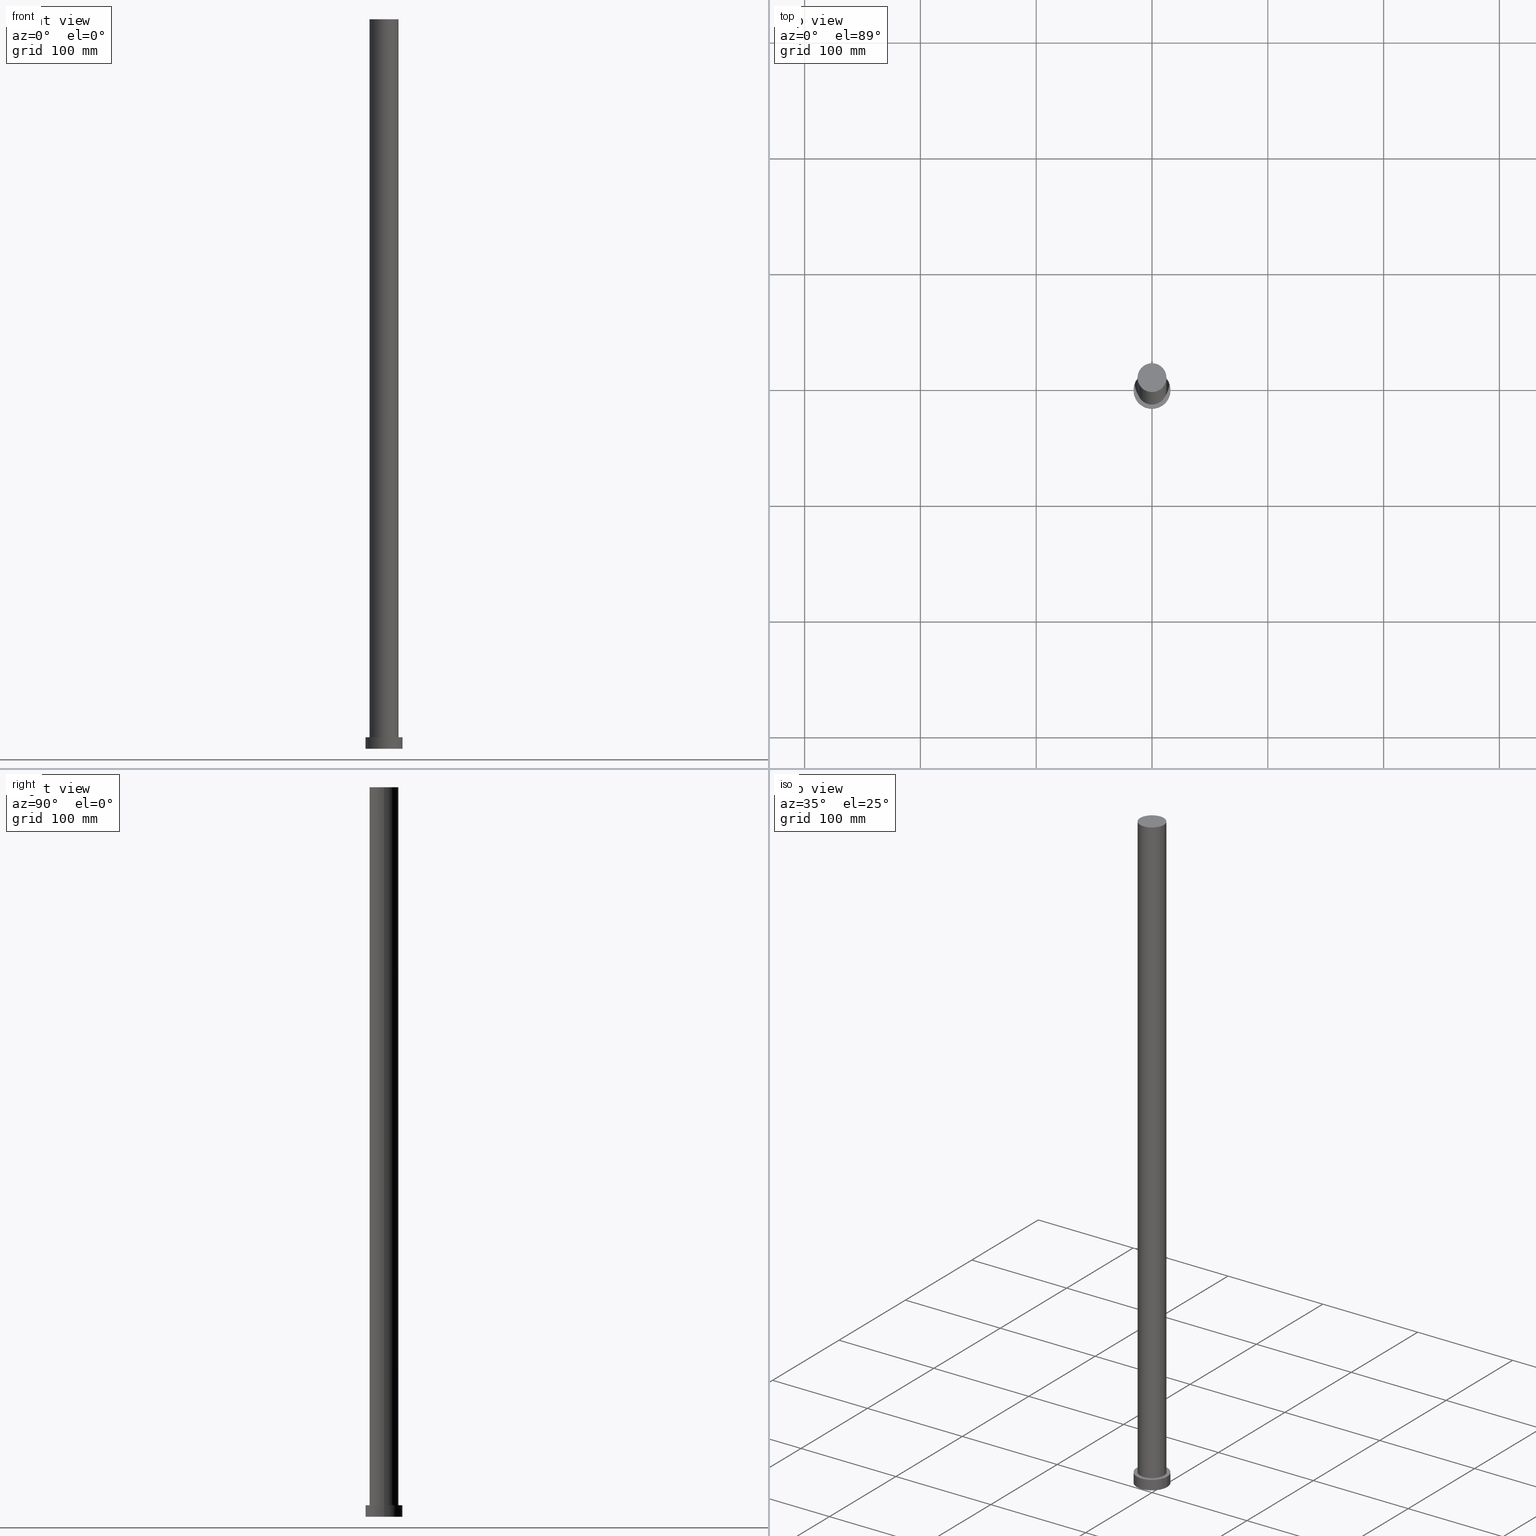
[diagram: canonical four-view strip — front | top / right | iso, engineering-drawing reading convention]
A machine part, canonical four-view strip (front | top / right | iso — engineering-drawing reading convention). The complete STEP part file that produces these views, byte-faithful:
ISO-10303-21;
HEADER;
FILE_DESCRIPTION (( 'STEP AP203' ),
    '1' );
FILE_NAME ('89f8.STEP',
    '2023-02-13T07:51:23',
    ( '' ),
    ( '' ),
    'SwSTEP 2.0',
    'SolidWorks 2019',
    '' );
FILE_SCHEMA (( 'CONFIG_CONTROL_DESIGN' ));
ENDSEC;

DATA;
#1 = FACE_OUTER_BOUND ( 'NONE', #225, .T. ) ;
#2 = PERSON_AND_ORGANIZATION_ROLE ( 'creator' ) ;
#3 = LOCAL_TIME ( 8, 51, 23.00000000000000000, #221 ) ;
#4 = CC_DESIGN_PERSON_AND_ORGANIZATION_ASSIGNMENT ( #142, #242, ( #140 ) ) ;
#5 = APPROVAL_STATUS ( 'not_yet_approved' ) ;
#6 = DATE_AND_TIME ( #181, #74 ) ;
#7 = ORIENTED_EDGE ( 'NONE', *, *, #110, .T. ) ;
#8 = DIRECTION ( 'NONE',  ( 1.000000000000000000, 0.000000000000000000, 0.000000000000000000 ) ) ;
#9 = EDGE_CURVE ( 'NONE', #71, #170, #45, .T. ) ;
#10 = DIRECTION ( 'NONE',  ( 0.000000000000000000, 0.000000000000000000, 1.000000000000000000 ) ) ;
#11 = UNCERTAINTY_MEASURE_WITH_UNIT (LENGTH_MEASURE( 1.000000000000000082E-05 ), #218, 'distance_accuracy_value', 'NONE');
#12 = CARTESIAN_POINT ( 'NONE',  ( 0.000000000000000000, 0.000000000000000000, 0.000000000000000000 ) ) ;
#13 = CYLINDRICAL_SURFACE ( 'NONE', #65, 12.50000000000000000 ) ;
#14 = SECURITY_CLASSIFICATION ( '', '', #184 ) ;
#15 = FACE_OUTER_BOUND ( 'NONE', #131, .T. ) ;
#16 = CARTESIAN_POINT ( 'NONE',  ( 12.50000000000000000, 1.530808498934191521E-15, 630.0000000000000000 ) ) ;
#17 = PLANE ( 'NONE',  #209 ) ;
#18 = DIRECTION ( 'NONE',  ( 0.000000000000000000, 0.000000000000000000, 1.000000000000000000 ) ) ;
#19 = VECTOR ( 'NONE', #168, 1000.000000000000000 ) ;
#20 = COORDINATED_UNIVERSAL_TIME_OFFSET ( 1, 0, .AHEAD. ) ;
#21 = PERSON_AND_ORGANIZATION ( #223, #100 ) ;
#22 = ADVANCED_FACE ( 'NONE', ( #150 ), #130, .T. ) ;
#23 = CIRCLE ( 'NONE', #147, 16.00000000000000000 ) ;
#24 = PERSON_AND_ORGANIZATION ( #223, #100 ) ;
#25 = ADVANCED_BREP_SHAPE_REPRESENTATION ( '89f8', ( #246, #95 ), #157 ) ;
#26 = APPROVAL ( #240, 'NEUR�EN�' ) ;
#27 = ORIENTED_EDGE ( 'NONE', *, *, #126, .F. ) ;
#28 = CARTESIAN_POINT ( 'NONE',  ( 0.000000000000000000, 0.000000000000000000, 630.0000000000000000 ) ) ;
#29 = EDGE_CURVE ( 'NONE', #172, #151, #175, .T. ) ;
#30 = PRODUCT_RELATED_PRODUCT_CATEGORY ( 'detail', '', ( #137 ) ) ;
#31 = ORIENTED_EDGE ( 'NONE', *, *, #57, .F. ) ;
#32 = ORIENTED_EDGE ( 'NONE', *, *, #222, .T. ) ;
#33 = DIRECTION ( 'NONE',  ( 1.000000000000000000, 0.000000000000000000, 0.000000000000000000 ) ) ;
#34 = EDGE_CURVE ( 'NONE', #112, #170, #50, .T. ) ;
#35 = CARTESIAN_POINT ( 'NONE',  ( 0.000000000000000000, 0.000000000000000000, 0.000000000000000000 ) ) ;
#36 = VECTOR ( 'NONE', #119, 1000.000000000000000 ) ;
#37 = CARTESIAN_POINT ( 'NONE',  ( -12.50000000000000000, 0.000000000000000000, 10.00000000000000000 ) ) ;
#38 = CARTESIAN_POINT ( 'NONE',  ( 0.000000000000000000, 0.000000000000000000, 10.00000000000000000 ) ) ;
#39 = DIRECTION ( 'NONE',  ( 0.000000000000000000, 0.000000000000000000, 1.000000000000000000 ) ) ;
#40 = LOCAL_TIME ( 8, 51, 23.00000000000000000, #104 ) ;
#41 = CARTESIAN_POINT ( 'NONE',  ( 16.00000000000000000, 1.959434878635765131E-15, 10.00000000000000000 ) ) ;
#42 = PERSON_AND_ORGANIZATION_ROLE ( 'classification_officer' ) ;
#43 = VECTOR ( 'NONE', #214, 1000.000000000000000 ) ;
#44 = DATE_AND_TIME ( #144, #3 ) ;
#45 = CIRCLE ( 'NONE', #146, 12.50000000000000000 ) ;
#46 = APPLICATION_CONTEXT ( 'configuration controlled 3d designs of mechanical parts and assemblies' ) ;
#47 = ORIENTED_EDGE ( 'NONE', *, *, #182, .T. ) ;
#48 = CC_DESIGN_PERSON_AND_ORGANIZATION_ASSIGNMENT ( #62, #220, ( #140 ) ) ;
#49 = ORIENTED_EDGE ( 'NONE', *, *, #97, .T. ) ;
#50 = LINE ( 'NONE', #191, #19 ) ;
#51 = VECTOR ( 'NONE', #160, 1000.000000000000000 ) ;
#52 = AXIS2_PLACEMENT_3D ( 'NONE', #154, #10, #33 ) ;
#53 = EDGE_LOOP ( 'NONE', ( #31, #32, #54, #244 ) ) ;
#54 = ORIENTED_EDGE ( 'NONE', *, *, #9, .T. ) ;
#55 = LINE ( 'NONE', #16, #43 ) ;
#56 = CARTESIAN_POINT ( 'NONE',  ( 0.000000000000000000, 0.000000000000000000, 0.000000000000000000 ) ) ;
#57 = EDGE_CURVE ( 'NONE', #91, #112, #164, .T. ) ;
#58 = CARTESIAN_POINT ( 'NONE',  ( 0.000000000000000000, 0.000000000000000000, 630.0000000000000000 ) ) ;
#59 = FACE_OUTER_BOUND ( 'NONE', #75, .T. ) ;
#60 = CC_DESIGN_APPROVAL ( #26, ( #140 ) ) ;
#61 = PLANE ( 'NONE',  #109 ) ;
#62 = PERSON_AND_ORGANIZATION ( #223, #100 ) ;
#63 = DATE_TIME_ROLE ( 'creation_date' ) ;
#64 = COORDINATED_UNIVERSAL_TIME_OFFSET ( 1, 0, .AHEAD. ) ;
#65 = AXIS2_PLACEMENT_3D ( 'NONE', #129, #245, #249 ) ;
#66 = DATE_AND_TIME ( #180, #162 ) ;
#67 = AXIS2_PLACEMENT_3D ( 'NONE', #28, #188, #113 ) ;
#68 = ADVANCED_FACE ( 'NONE', ( #230 ), #13, .T. ) ;
#69 = EDGE_LOOP ( 'NONE', ( #47, #229 ) ) ;
#70 = AXIS2_PLACEMENT_3D ( 'NONE', #174, #217, #121 ) ;
#71 = VERTEX_POINT ( 'NONE', #92 ) ;
#72 = ORIENTED_EDGE ( 'NONE', *, *, #153, .F. ) ;
#73 = EDGE_LOOP ( 'NONE', ( #128, #148, #207, #211 ) ) ;
#74 = LOCAL_TIME ( 8, 51, 23.00000000000000000, #64 ) ;
#75 = EDGE_LOOP ( 'NONE', ( #7, #171 ) ) ;
#76 = DIRECTION ( 'NONE',  ( 0.000000000000000000, 0.000000000000000000, 1.000000000000000000 ) ) ;
#77 = FACE_OUTER_BOUND ( 'NONE', #69, .T. ) ;
#78 = ADVANCED_FACE ( 'NONE', ( #15 ), #80, .F. ) ;
#79 = APPROVAL ( #5, 'NEUR�EN�' ) ;
#80 = PLANE ( 'NONE',  #152 ) ;
#81 = LINE ( 'NONE', #251, #51 ) ;
#82 = DIRECTION ( 'NONE',  ( 1.000000000000000000, 0.000000000000000000, 0.000000000000000000 ) ) ;
#83 = PERSON_AND_ORGANIZATION ( #223, #100 ) ;
#84 = EDGE_CURVE ( 'NONE', #89, #151, #193, .T. ) ;
#85 = APPLICATION_CONTEXT ( 'configuration controlled 3d designs of mechanical parts and assemblies' ) ;
#86 = SHAPE_DEFINITION_REPRESENTATION ( #105, #25 ) ;
#87 = COORDINATED_UNIVERSAL_TIME_OFFSET ( 1, 0, .AHEAD. ) ;
#88 = ORIENTED_EDGE ( 'NONE', *, *, #110, .F. ) ;
#89 = VERTEX_POINT ( 'NONE', #41 ) ;
#90 = CIRCLE ( 'NONE', #163, 16.00000000000000000 ) ;
#91 = VERTEX_POINT ( 'NONE', #235 ) ;
#92 = CARTESIAN_POINT ( 'NONE',  ( 12.50000000000000000, 1.530808498934191521E-15, 10.00000000000000000 ) ) ;
#93 = CC_DESIGN_PERSON_AND_ORGANIZATION_ASSIGNMENT ( #21, #2, ( #192 ) ) ;
#94 = ORIENTED_EDGE ( 'NONE', *, *, #222, .F. ) ;
#95 = AXIS2_PLACEMENT_3D ( 'NONE', #196, #139, #124 ) ;
#96 = DIRECTION ( 'NONE',  ( 1.000000000000000000, 0.000000000000000000, -0.000000000000000000 ) ) ;
#97 = EDGE_CURVE ( 'NONE', #151, #172, #23, .T. ) ;
#98 = DIRECTION ( 'NONE',  ( 1.000000000000000000, 0.000000000000000000, 0.000000000000000000 ) ) ;
#99 = CARTESIAN_POINT ( 'NONE',  ( -16.00000000000000000, 0.000000000000000000, 10.00000000000000000 ) ) ;
#100 = ORGANIZATION ( 'NEUR�EN�', 'NEUR�EN�', '' ) ;
#101 = AXIS2_PLACEMENT_3D ( 'NONE', #12, #187, #8 ) ;
#102 = CALENDAR_DATE ( 2023, 13, 2 ) ;
#103 = DIRECTION ( 'NONE',  ( 1.000000000000000000, 0.000000000000000000, 0.000000000000000000 ) ) ;
#104 = COORDINATED_UNIVERSAL_TIME_OFFSET ( 1, 0, .AHEAD. ) ;
#105 = PRODUCT_DEFINITION_SHAPE ( 'NONE', 'NONE',  #192 ) ;
#106 = EDGE_CURVE ( 'NONE', #170, #71, #179, .T. ) ;
#107 = APPROVAL_ROLE ( '' ) ;
#108 = APPROVAL_DATE_TIME ( #44, #79 ) ;
#109 = AXIS2_PLACEMENT_3D ( 'NONE', #177, #76, #96 ) ;
#110 = EDGE_CURVE ( 'NONE', #112, #91, #228, .T. ) ;
#111 = CC_DESIGN_PERSON_AND_ORGANIZATION_ASSIGNMENT ( #83, #42, ( #14 ) ) ;
#112 = VERTEX_POINT ( 'NONE', #238 ) ;
#113 = DIRECTION ( 'NONE',  ( -1.000000000000000000, 0.000000000000000000, 0.000000000000000000 ) ) ;
#114 = ORIENTED_EDGE ( 'NONE', *, *, #84, .T. ) ;
#115 = ORIENTED_EDGE ( 'NONE', *, *, #34, .T. ) ;
#116 = ORIENTED_EDGE ( 'NONE', *, *, #106, .T. ) ;
#117 = FACE_BOUND ( 'NONE', #208, .T. ) ;
#118 = FACE_OUTER_BOUND ( 'NONE', #73, .T. ) ;
#119 = DIRECTION ( 'NONE',  ( -0.000000000000000000, -0.000000000000000000, -1.000000000000000000 ) ) ;
#120 = PERSON_AND_ORGANIZATION_ROLE ( 'design_owner' ) ;
#121 = DIRECTION ( 'NONE',  ( -1.000000000000000000, 0.000000000000000000, 0.000000000000000000 ) ) ;
#122 = APPLICATION_PROTOCOL_DEFINITION ( 'international standard', 'config_control_design', 1994, #46 ) ;
#123 = CC_DESIGN_DATE_AND_TIME_ASSIGNMENT ( #176, #63, ( #192 ) ) ;
#124 = DIRECTION ( 'NONE',  ( 1.000000000000000000, 0.000000000000000000, 0.000000000000000000 ) ) ;
#125 = DATE_TIME_ROLE ( 'classification_date' ) ;
#126 = EDGE_CURVE ( 'NONE', #224, #172, #81, .T. ) ;
#127 = ORIENTED_EDGE ( 'NONE', *, *, #9, .F. ) ;
#128 = ORIENTED_EDGE ( 'NONE', *, *, #84, .F. ) ;
#129 = CARTESIAN_POINT ( 'NONE',  ( 0.000000000000000000, 0.000000000000000000, 630.0000000000000000 ) ) ;
#130 = CYLINDRICAL_SURFACE ( 'NONE', #67, 12.50000000000000000 ) ;
#131 = EDGE_LOOP ( 'NONE', ( #243, #226 ) ) ;
#132 = DIRECTION ( 'NONE',  ( 1.000000000000000000, 0.000000000000000000, -0.000000000000000000 ) ) ;
#133 = DIRECTION ( 'NONE',  ( 1.000000000000000000, 0.000000000000000000, -0.000000000000000000 ) ) ;
#134 = CARTESIAN_POINT ( 'NONE',  ( -16.00000000000000000, 0.000000000000000000, 0.000000000000000000 ) ) ;
#135 = DATE_AND_TIME ( #199, #40 ) ;
#136 = APPROVAL ( #237, 'NEUR�EN�' ) ;
#137 = PRODUCT ( '89f8', '89f8', '', ( #234 ) ) ;
#138 = CARTESIAN_POINT ( 'NONE',  ( 16.00000000000000000, 1.959434878635765131E-15, 0.000000000000000000 ) ) ;
#139 = DIRECTION ( 'NONE',  ( 0.000000000000000000, 0.000000000000000000, 1.000000000000000000 ) ) ;
#140 = PRODUCT_DEFINITION_FORMATION_WITH_SPECIFIED_SOURCE ( 'LIBOVOLN�', '', #137, .NOT_KNOWN. ) ;
#141 =( NAMED_UNIT ( * ) PLANE_ANGLE_UNIT ( ) SI_UNIT ( $, .RADIAN. ) );
#142 = PERSON_AND_ORGANIZATION ( #223, #100 ) ;
#143 = ADVANCED_FACE ( 'NONE', ( #59 ), #17, .T. ) ;
#144 = CALENDAR_DATE ( 2023, 13, 2 ) ;
#145 = CC_DESIGN_APPROVAL ( #136, ( #192 ) ) ;
#146 = AXIS2_PLACEMENT_3D ( 'NONE', #190, #210, #185 ) ;
#147 = AXIS2_PLACEMENT_3D ( 'NONE', #56, #253, #98 ) ;
#148 = ORIENTED_EDGE ( 'NONE', *, *, #182, .F. ) ;
#149 = EDGE_LOOP ( 'NONE', ( #94, #88, #115, #116 ) ) ;
#150 = FACE_OUTER_BOUND ( 'NONE', #53, .T. ) ;
#151 = VERTEX_POINT ( 'NONE', #138 ) ;
#152 = AXIS2_PLACEMENT_3D ( 'NONE', #35, #158, #132 ) ;
#153 = EDGE_CURVE ( 'NONE', #89, #224, #204, .T. ) ;
#154 = CARTESIAN_POINT ( 'NONE',  ( 0.000000000000000000, 0.000000000000000000, 630.0000000000000000 ) ) ;
#155 = CARTESIAN_POINT ( 'NONE',  ( 0.000000000000000000, 0.000000000000000000, 10.00000000000000000 ) ) ;
#156 = DIRECTION ( 'NONE',  ( 1.000000000000000000, 0.000000000000000000, 0.000000000000000000 ) ) ;
#157 =( GEOMETRIC_REPRESENTATION_CONTEXT ( 3 ) GLOBAL_UNCERTAINTY_ASSIGNED_CONTEXT ( ( #11 ) ) GLOBAL_UNIT_ASSIGNED_CONTEXT ( ( #218, #141, #202 ) ) REPRESENTATION_CONTEXT ( 'NONE', 'WORKASPACE' ) );
#158 = DIRECTION ( 'NONE',  ( 0.000000000000000000, 0.000000000000000000, 1.000000000000000000 ) ) ;
#159 = PERSON_AND_ORGANIZATION ( #223, #100 ) ;
#160 = DIRECTION ( 'NONE',  ( -0.000000000000000000, -0.000000000000000000, -1.000000000000000000 ) ) ;
#161 = DIRECTION ( 'NONE',  ( -1.000000000000000000, 0.000000000000000000, 0.000000000000000000 ) ) ;
#162 = LOCAL_TIME ( 8, 51, 23.00000000000000000, #87 ) ;
#163 = AXIS2_PLACEMENT_3D ( 'NONE', #38, #212, #156 ) ;
#164 = CIRCLE ( 'NONE', #52, 12.50000000000000000 ) ;
#165 = ORIENTED_EDGE ( 'NONE', *, *, #106, .F. ) ;
#166 = AXIS2_PLACEMENT_3D ( 'NONE', #254, #39, #103 ) ;
#167 = ADVANCED_FACE ( 'NONE', ( #117, #77 ), #61, .T. ) ;
#168 = DIRECTION ( 'NONE',  ( -0.000000000000000000, -0.000000000000000000, -1.000000000000000000 ) ) ;
#169 = CC_DESIGN_DATE_AND_TIME_ASSIGNMENT ( #66, #125, ( #14 ) ) ;
#170 = VERTEX_POINT ( 'NONE', #37 ) ;
#171 = ORIENTED_EDGE ( 'NONE', *, *, #57, .T. ) ;
#172 = VERTEX_POINT ( 'NONE', #134 ) ;
#173 = CYLINDRICAL_SURFACE ( 'NONE', #70, 16.00000000000000000 ) ;
#174 = CARTESIAN_POINT ( 'NONE',  ( 0.000000000000000000, 0.000000000000000000, 10.00000000000000000 ) ) ;
#175 = CIRCLE ( 'NONE', #101, 16.00000000000000000 ) ;
#176 = DATE_AND_TIME ( #102, #200 ) ;
#177 = CARTESIAN_POINT ( 'NONE',  ( 0.000000000000000000, 0.000000000000000000, 10.00000000000000000 ) ) ;
#178 = APPROVAL_DATE_TIME ( #135, #136 ) ;
#179 = CIRCLE ( 'NONE', #166, 12.50000000000000000 ) ;
#180 = CALENDAR_DATE ( 2023, 13, 2 ) ;
#181 = CALENDAR_DATE ( 2023, 13, 2 ) ;
#182 = EDGE_CURVE ( 'NONE', #224, #89, #90, .T. ) ;
#183 = APPROVAL_PERSON_ORGANIZATION ( #255, #26, #206 ) ;
#184 = SECURITY_CLASSIFICATION_LEVEL ( 'unclassified' ) ;
#185 = DIRECTION ( 'NONE',  ( 1.000000000000000000, 0.000000000000000000, 0.000000000000000000 ) ) ;
#186 = ADVANCED_FACE ( 'NONE', ( #1 ), #197, .T. ) ;
#187 = DIRECTION ( 'NONE',  ( 0.000000000000000000, 0.000000000000000000, 1.000000000000000000 ) ) ;
#188 = DIRECTION ( 'NONE',  ( -0.000000000000000000, -0.000000000000000000, -1.000000000000000000 ) ) ;
#189 = CC_DESIGN_APPROVAL ( #79, ( #14 ) ) ;
#190 = CARTESIAN_POINT ( 'NONE',  ( 0.000000000000000000, 0.000000000000000000, 10.00000000000000000 ) ) ;
#191 = CARTESIAN_POINT ( 'NONE',  ( -12.50000000000000000, 0.000000000000000000, 630.0000000000000000 ) ) ;
#192 = PRODUCT_DEFINITION ( 'NEZN�M�', '', #140, #247 ) ;
#193 = LINE ( 'NONE', #231, #36 ) ;
#194 = APPROVAL_PERSON_ORGANIZATION ( #24, #79, #107 ) ;
#195 = DIRECTION ( 'NONE',  ( -0.000000000000000000, -0.000000000000000000, -1.000000000000000000 ) ) ;
#196 = CARTESIAN_POINT ( 'NONE',  ( 0.000000000000000000, 0.000000000000000000, 0.000000000000000000 ) ) ;
#197 = CYLINDRICAL_SURFACE ( 'NONE', #213, 16.00000000000000000 ) ;
#198 = APPLICATION_PROTOCOL_DEFINITION ( 'international standard', 'config_control_design', 1994, #85 ) ;
#199 = CALENDAR_DATE ( 2023, 13, 2 ) ;
#200 = LOCAL_TIME ( 8, 51, 23.00000000000000000, #20 ) ;
#201 = DIRECTION ( 'NONE',  ( 0.000000000000000000, 0.000000000000000000, 1.000000000000000000 ) ) ;
#202 =( NAMED_UNIT ( * ) SI_UNIT ( $, .STERADIAN. ) SOLID_ANGLE_UNIT ( ) );
#203 = APPROVAL_ROLE ( '' ) ;
#204 = CIRCLE ( 'NONE', #248, 16.00000000000000000 ) ;
#205 = APPROVAL_DATE_TIME ( #6, #26 ) ;
#206 = APPROVAL_ROLE ( '' ) ;
#207 = ORIENTED_EDGE ( 'NONE', *, *, #126, .T. ) ;
#208 = EDGE_LOOP ( 'NONE', ( #165, #127 ) ) ;
#209 = AXIS2_PLACEMENT_3D ( 'NONE', #58, #18, #133 ) ;
#210 = DIRECTION ( 'NONE',  ( 0.000000000000000000, 0.000000000000000000, 1.000000000000000000 ) ) ;
#211 = ORIENTED_EDGE ( 'NONE', *, *, #29, .T. ) ;
#212 = DIRECTION ( 'NONE',  ( 0.000000000000000000, 0.000000000000000000, 1.000000000000000000 ) ) ;
#213 = AXIS2_PLACEMENT_3D ( 'NONE', #155, #195, #161 ) ;
#214 = DIRECTION ( 'NONE',  ( -0.000000000000000000, -0.000000000000000000, -1.000000000000000000 ) ) ;
#215 = DIRECTION ( 'NONE',  ( 0.000000000000000000, 0.000000000000000000, 1.000000000000000000 ) ) ;
#216 = PERSON_AND_ORGANIZATION ( #223, #100 ) ;
#217 = DIRECTION ( 'NONE',  ( -0.000000000000000000, -0.000000000000000000, -1.000000000000000000 ) ) ;
#218 =( LENGTH_UNIT ( ) NAMED_UNIT ( * ) SI_UNIT ( .MILLI., .METRE. ) );
#219 = AXIS2_PLACEMENT_3D ( 'NONE', #232, #201, #250 ) ;
#220 = PERSON_AND_ORGANIZATION_ROLE ( 'creator' ) ;
#221 = COORDINATED_UNIVERSAL_TIME_OFFSET ( 1, 0, .AHEAD. ) ;
#222 = EDGE_CURVE ( 'NONE', #91, #71, #55, .T. ) ;
#223 = PERSON ( 'NEUR�EN�', 'NEUR�EN�', 'NEUR�EN�', ('NEUR�EN�'), ('NEUR�EN�'), ('NEUR�EN�') ) ;
#224 = VERTEX_POINT ( 'NONE', #99 ) ;
#225 = EDGE_LOOP ( 'NONE', ( #72, #114, #49, #27 ) ) ;
#226 = ORIENTED_EDGE ( 'NONE', *, *, #97, .F. ) ;
#227 = ADVANCED_FACE ( 'NONE', ( #118 ), #173, .T. ) ;
#228 = CIRCLE ( 'NONE', #219, 12.50000000000000000 ) ;
#229 = ORIENTED_EDGE ( 'NONE', *, *, #153, .T. ) ;
#230 = FACE_OUTER_BOUND ( 'NONE', #149, .T. ) ;
#231 = CARTESIAN_POINT ( 'NONE',  ( 16.00000000000000000, 1.959434878635765131E-15, 10.00000000000000000 ) ) ;
#232 = CARTESIAN_POINT ( 'NONE',  ( 0.000000000000000000, 0.000000000000000000, 630.0000000000000000 ) ) ;
#233 = CLOSED_SHELL ( 'NONE', ( #22, #186, #227, #167, #78, #68, #143 ) ) ;
#234 = MECHANICAL_CONTEXT ( 'NONE', #46, 'mechanical' ) ;
#235 = CARTESIAN_POINT ( 'NONE',  ( 12.50000000000000000, 1.530808498934191521E-15, 630.0000000000000000 ) ) ;
#236 = CC_DESIGN_SECURITY_CLASSIFICATION ( #14, ( #140 ) ) ;
#237 = APPROVAL_STATUS ( 'not_yet_approved' ) ;
#238 = CARTESIAN_POINT ( 'NONE',  ( -12.50000000000000000, 0.000000000000000000, 630.0000000000000000 ) ) ;
#239 = CARTESIAN_POINT ( 'NONE',  ( 0.000000000000000000, 0.000000000000000000, 10.00000000000000000 ) ) ;
#240 = APPROVAL_STATUS ( 'not_yet_approved' ) ;
#241 = CC_DESIGN_PERSON_AND_ORGANIZATION_ASSIGNMENT ( #216, #120, ( #137 ) ) ;
#242 = PERSON_AND_ORGANIZATION_ROLE ( 'design_supplier' ) ;
#243 = ORIENTED_EDGE ( 'NONE', *, *, #29, .F. ) ;
#244 = ORIENTED_EDGE ( 'NONE', *, *, #34, .F. ) ;
#245 = DIRECTION ( 'NONE',  ( -0.000000000000000000, -0.000000000000000000, -1.000000000000000000 ) ) ;
#246 = MANIFOLD_SOLID_BREP ( 'P�idat vysunut�m3', #233 ) ;
#247 = DESIGN_CONTEXT ( 'detailed design', #85, 'design' ) ;
#248 = AXIS2_PLACEMENT_3D ( 'NONE', #239, #215, #82 ) ;
#249 = DIRECTION ( 'NONE',  ( -1.000000000000000000, 0.000000000000000000, 0.000000000000000000 ) ) ;
#250 = DIRECTION ( 'NONE',  ( 1.000000000000000000, 0.000000000000000000, 0.000000000000000000 ) ) ;
#251 = CARTESIAN_POINT ( 'NONE',  ( -16.00000000000000000, 0.000000000000000000, 10.00000000000000000 ) ) ;
#252 = APPROVAL_PERSON_ORGANIZATION ( #159, #136, #203 ) ;
#253 = DIRECTION ( 'NONE',  ( 0.000000000000000000, 0.000000000000000000, 1.000000000000000000 ) ) ;
#254 = CARTESIAN_POINT ( 'NONE',  ( 0.000000000000000000, 0.000000000000000000, 10.00000000000000000 ) ) ;
#255 = PERSON_AND_ORGANIZATION ( #223, #100 ) ;
ENDSEC;
END-ISO-10303-21;
